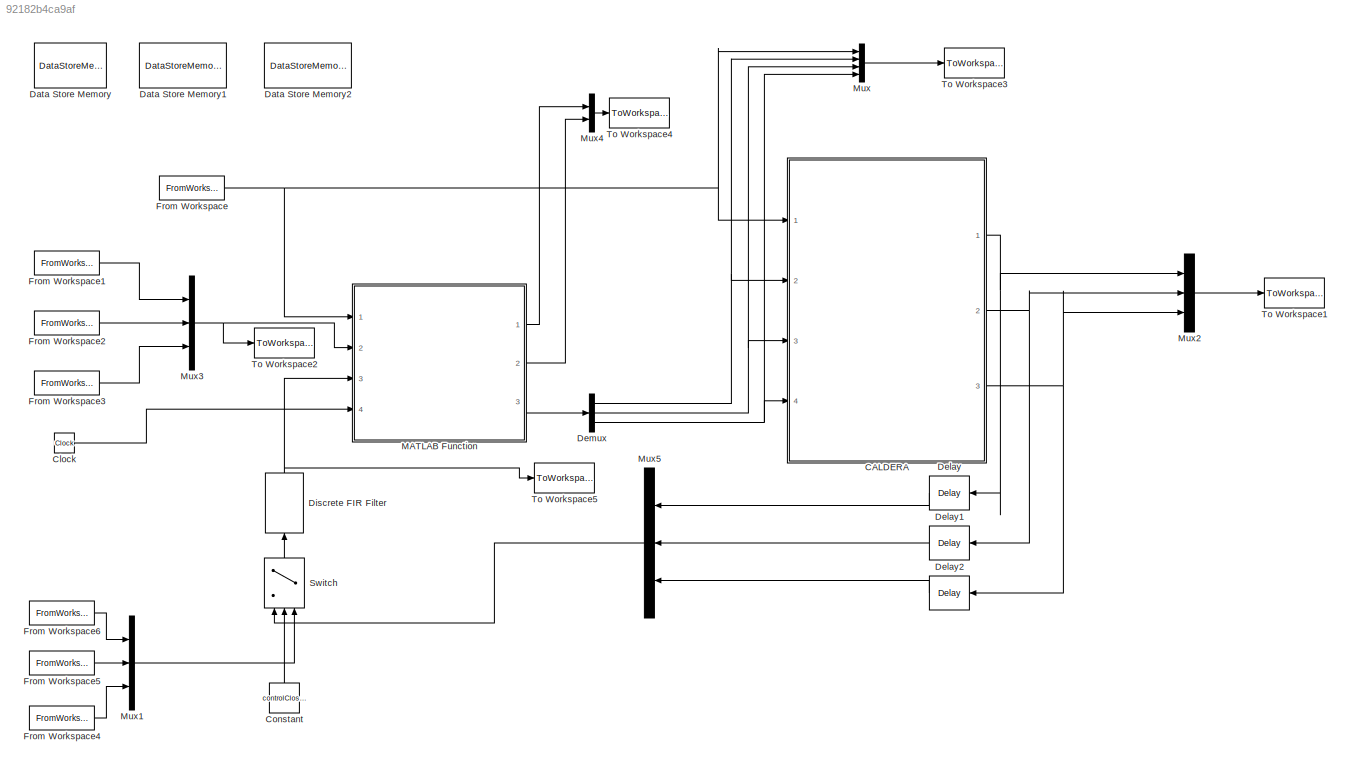
MODEL slx_92182b4ca9af
KIND model
CONFIG AbsTol = auto
CONFIG EnableMultiTasking = on
CONFIG FixedStep = Dt
CONFIG MaxStep = auto
CONFIG MinStep = auto
CONFIG RelTol = 1e-3
CONFIG SampleTimeConstraint = Unconstrained
CONFIG Solver = FixedStepAuto
CONFIG SolverName = FixedStepAuto
CONFIG StartTime = 0.0
CONFIG StopTime = simTime
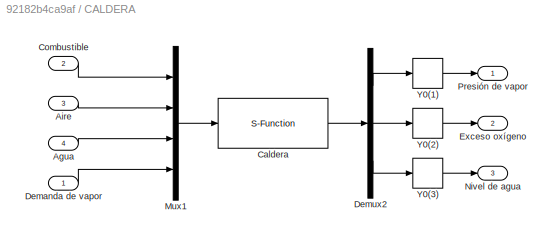
BLOCK [SubSystem] CALDERA
  Ports = [4, 3]
  RequestExecContextInheritance = off
  Variant = off
BLOCK [Inport] CALDERA/Agua
  IconDisplay = Port number
  Port = 4
BLOCK [Inport] CALDERA/Aire
  IconDisplay = Port number
  Port = 3
BLOCK [S-Function] CALDERA/Caldera
  EnableBusSupport = off
  FunctionName = cic2017_boiler
  Parameters = Y0,[U0 D0]
  Ports = [1, 1]
  SFcnIsStateOwnerBlock = off
  SFunctionDeploymentMode = off
BLOCK [Inport] CALDERA/Combustible
  IconDisplay = Port number
  Port = 2
BLOCK [Inport] CALDERA/Demanda de vapor
  IconDisplay = Port number
BLOCK [Demux] CALDERA/Demux2
  DisplayOption = bar
  Outputs = 3
  Ports = [1, 3]
BLOCK [Outport] CALDERA/Exceso oxígeno
  IconDisplay = Port number
  Port = 2
BLOCK [Mux] CALDERA/Mux1
  DisplayOption = bar
  Ports = [4, 1]
BLOCK [Outport] CALDERA/Nivel de agua
  IconDisplay = Port number
  Port = 3
BLOCK [Outport] CALDERA/Presión de vapor
  IconDisplay = Port number
BLOCK [Memory] CALDERA/Y0(1)
  X0 = Y0(1)
BLOCK [Memory] CALDERA/Y0(2)
  X0 = Y0(2)
BLOCK [Memory] CALDERA/Y0(3)
  X0 = Y0(3)
BLOCK [Clock] Clock
  Decimation = 1
  DisplayTime = on
BLOCK [Constant] Constant
  Value = controlClosedLoop
BLOCK [DataStoreMemory] Data Store Memory
  DataStoreName = uPastValues
  InitialValue = [U0]'*ones(1,maxUDelay);
  OutDataTypeStr = double
  ReadBeforeWriteMsg = warning
  ShowAdditionalParam = off
  SignalType = real
  VectorParams1D = off
  WriteAfterReadMsg = warning
  WriteAfterWriteMsg = warning
BLOCK [DataStoreMemory] Data Store Memory1
  DataStoreName = yPastValues
  InitialValue = Y0'*ones(1,maxYDelay)
  OutDataTypeStr = double
  ReadBeforeWriteMsg = warning
  ShowAdditionalParam = off
  SignalType = real
  VectorParams1D = off
  WriteAfterReadMsg = warning
  WriteAfterWriteMsg = warning
BLOCK [DataStoreMemory] Data Store Memory2
  DataStoreName = dPastValues
  InitialValue = D0'*ones(1,maxDDelay)
  OutDataTypeStr = double
  ReadBeforeWriteMsg = warning
  ShowAdditionalParam = off
  SignalType = real
  VectorParams1D = off
  WriteAfterReadMsg = warning
  WriteAfterWriteMsg = warning
BLOCK [Delay] Delay
  DelayLength = 0
  InitialCondition = Y0(1)
  InputPortMap = u0
  Ports = [1, 1]
BLOCK [Delay] Delay1
  DelayLength = 0
  InitialCondition = Y0(2)
  InputPortMap = u0
  Ports = [1, 1]
BLOCK [Delay] Delay2
  DelayLength = 0
  InitialCondition = Y0(3)
  InputPortMap = u0
  Ports = [1, 1]
BLOCK [Demux] Demux
  DisplayOption = bar
  Outputs = 3
  Ports = [1, 3]
BLOCK [DiscreteFir] Discrete FIR Filter
  Coefficients = bFilter
  InputPortMap = u0
  OutputPortMap = o0
  Ports = [1, 1]
BLOCK [FromWorkspace] From Workspace
  Interpolate = off
  OutputAfterFinalValue = Holding final value
  SampleTime = Dt
  VariableName = D
  ZeroCross = on
BLOCK [FromWorkspace] From Workspace1
  Interpolate = off
  OutputAfterFinalValue = Holding final value
  SampleTime = Dt
  VariableName = yRef{1}
  ZeroCross = on
BLOCK [FromWorkspace] From Workspace2
  Interpolate = off
  OutputAfterFinalValue = Holding final value
  SampleTime = 0
  VariableName = yRef{2}
  ZeroCross = on
BLOCK [FromWorkspace] From Workspace3
  Interpolate = off
  OutputAfterFinalValue = Holding final value
  SampleTime = Dt
  VariableName = yRef{3}
  ZeroCross = on
BLOCK [FromWorkspace] From Workspace4
  Interpolate = off
  OutputAfterFinalValue = Holding final value
  SampleTime = Dt
  VariableName = ySensor{3}
  ZeroCross = on
BLOCK [FromWorkspace] From Workspace5
  Interpolate = off
  OutputAfterFinalValue = Holding final value
  SampleTime = Dt
  VariableName = ySensor{2}
  ZeroCross = on
BLOCK [FromWorkspace] From Workspace6
  Interpolate = off
  OutputAfterFinalValue = Holding final value
  SampleTime = Dt
  VariableName = ySensor{1}
  ZeroCross = on
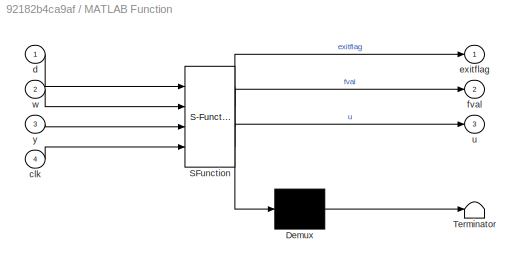
BLOCK [SubSystem] MATLAB Function
  ErrorFcn = Stateflow.Translate.translate
  PermitHierarchicalResolution = ExplicitOnly
  Ports = [4, 3]
  RequestExecContextInheritance = off
  SFBlockType = MATLAB Function
  TreatAsAtomicUnit = on
  Variant = off
BLOCK [Demux] MATLAB Function/ Demux 
  Outputs = 1
  Ports = [1, 1]
BLOCK [S-Function] MATLAB Function/ SFunction 
  EnableBusSupport = on
  FunctionName = sf_sfun
  Parameters = GAParameters,beta,lBounds,lambdaMatrix,nPredictors,nTrees,na,nb,nc,qMatrix,rMatrix,tau_C,tau_R,uBounds,uLims,yLims
  PortCounts = [4 4]
  Ports = [4, 4]
  SFcnIsStateOwnerBlock = off
  SFunctionDeploymentMode = off
  Tag = Stateflow S-Function mpc_rf_boiler 2
BLOCK [Terminator] MATLAB Function/ Terminator 
BLOCK [Inport] MATLAB Function/clk
  IconDisplay = Port number
  Port = 4
BLOCK [Inport] MATLAB Function/d
  IconDisplay = Port number
BLOCK [Outport] MATLAB Function/exitflag
  IconDisplay = Port number
BLOCK [Outport] MATLAB Function/fval
  IconDisplay = Port number
  Port = 2
BLOCK [Outport] MATLAB Function/u
  IconDisplay = Port number
  Port = 3
BLOCK [Inport] MATLAB Function/w
  IconDisplay = Port number
  Port = 2
BLOCK [Inport] MATLAB Function/y
  IconDisplay = Port number
  Port = 3
BLOCK [Mux] Mux
  DisplayOption = bar
  Ports = [4, 1]
BLOCK [Mux] Mux1
  DisplayOption = bar
  Inputs = 3
  Ports = [3, 1]
BLOCK [Mux] Mux2
  DisplayOption = bar
  Inputs = 3
  Ports = [3, 1]
BLOCK [Mux] Mux3
  DisplayOption = bar
  Inputs = 3
  Ports = [3, 1]
BLOCK [Mux] Mux4
  DisplayOption = bar
  Inputs = 2
  Ports = [2, 1]
BLOCK [Mux] Mux5
  DisplayOption = bar
  Inputs = 3
  Ports = [3, 1]
BLOCK [Switch] Switch
  Criteria = u2 > Threshold
  InputSameDT = off
  SaturateOnIntegerOverflow = off
  Threshold = 0.5
BLOCK [ToWorkspace] To Workspace1
  FixptAsFi = on
  MaxDataPoints = inf
  Ports = [1]
  SampleTime = -1
  Save2DSignal = 3-D array (concatenate along third dimension)
  SaveFormat = Structure With Time
  VariableName = y
BLOCK [ToWorkspace] To Workspace2
  FixptAsFi = on
  MaxDataPoints = inf
  Ports = [1]
  SampleTime = -1
  Save2DSignal = 3-D array (concatenate along third dimension)
  SaveFormat = Structure With Time
  VariableName = wRef
BLOCK [ToWorkspace] To Workspace3
  FixptAsFi = on
  MaxDataPoints = inf
  Ports = [1]
  SampleTime = -1
  Save2DSignal = 3-D array (concatenate along third dimension)
  SaveFormat = Structure With Time
  VariableName = inputs
BLOCK [ToWorkspace] To Workspace4
  FixptAsFi = on
  MaxDataPoints = inf
  Ports = [1]
  SampleTime = -1
  Save2DSignal = 3-D array (concatenate along third dimension)
  SaveFormat = Structure With Time
  VariableName = gaResults
BLOCK [ToWorkspace] To Workspace5
  FixptAsFi = on
  MaxDataPoints = inf
  Ports = [1]
  SampleTime = -1
  Save2DSignal = 3-D array (concatenate along third dimension)
  SaveFormat = Structure With Time
  VariableName = yFiltered
LINE CALDERA/Agua:1 -> CALDERA/Mux1:3
LINE CALDERA/Aire:1 -> CALDERA/Mux1:2
LINE CALDERA/Caldera:1 -> CALDERA/Demux2:1
LINE CALDERA/Combustible:1 -> CALDERA/Mux1:1
LINE CALDERA/Demanda de vapor:1 -> CALDERA/Mux1:4
LINE CALDERA/Demux2:1 -> CALDERA/Y0(1):1
LINE CALDERA/Demux2:2 -> CALDERA/Y0(2):1
LINE CALDERA/Demux2:3 -> CALDERA/Y0(3):1
LINE CALDERA/Mux1:1 -> CALDERA/Caldera:1
LINE CALDERA/Y0(1):1 -> CALDERA/Presión de vapor:1
LINE CALDERA/Y0(2):1 -> CALDERA/Exceso oxígeno:1
LINE CALDERA/Y0(3):1 -> CALDERA/Nivel de agua:1
NET CALDERA:1 -> Delay:1, Mux2:1
NET CALDERA:2 -> Delay1:1, Mux2:2
NET CALDERA:3 -> Delay2:1, Mux2:3
LINE Clock:1 -> MATLAB Function:4
LINE Constant:1 -> Switch:2
LINE Delay1:1 -> Mux5:2
LINE Delay2:1 -> Mux5:3
LINE Delay:1 -> Mux5:1
NET Demux:1 -> CALDERA:2, Mux:2
NET Demux:2 -> CALDERA:3, Mux:3
NET Demux:3 -> CALDERA:4, Mux:4
NET Discrete FIR Filter:1 -> MATLAB Function:3, To Workspace5:1
LINE From Workspace1:1 -> Mux3:1
LINE From Workspace2:1 -> Mux3:2
LINE From Workspace3:1 -> Mux3:3
LINE From Workspace4:1 -> Mux1:3
LINE From Workspace5:1 -> Mux1:2
LINE From Workspace6:1 -> Mux1:1
NET From Workspace:1 -> CALDERA:1, MATLAB Function:1, Mux:1
LINE MATLAB Function:1 -> Mux4:1
LINE MATLAB Function:2 -> Mux4:2
LINE MATLAB Function:3 -> Demux:1
LINE Mux1:1 -> Switch:3
LINE Mux2:1 -> To Workspace1:1
NET Mux3:1 -> MATLAB Function:2, To Workspace2:1
LINE Mux4:1 -> To Workspace4:1
LINE Mux5:1 -> Switch:1
LINE Mux:1 -> To Workspace3:1
LINE Switch:1 -> Discrete FIR Filter:1
note: NET lines group one-source signal fan-out (src -> all destinations, sorted); 1:1 wires keep LINE
CHART MATLAB Function states=1 transitions=1
  STATE_LABEL 'eML_blk_kernel()'
  STATE_LABEL 'SCRIPT:\nfunction [exitflag, fval, u] = MPC_RF(d, w, y, clk,...\n                                    qMatrix, rMatrix, lambdaMatrix, beta,...\n                                    yLims, lBounds, uBounds, ...\n                                    nTrees, nPredictors, na, nb, nc,...\n                                    tau_R, tau_C,...\n                                    uLims,GAParameters)\ncoder.extrinsi...<+1483ch>'
